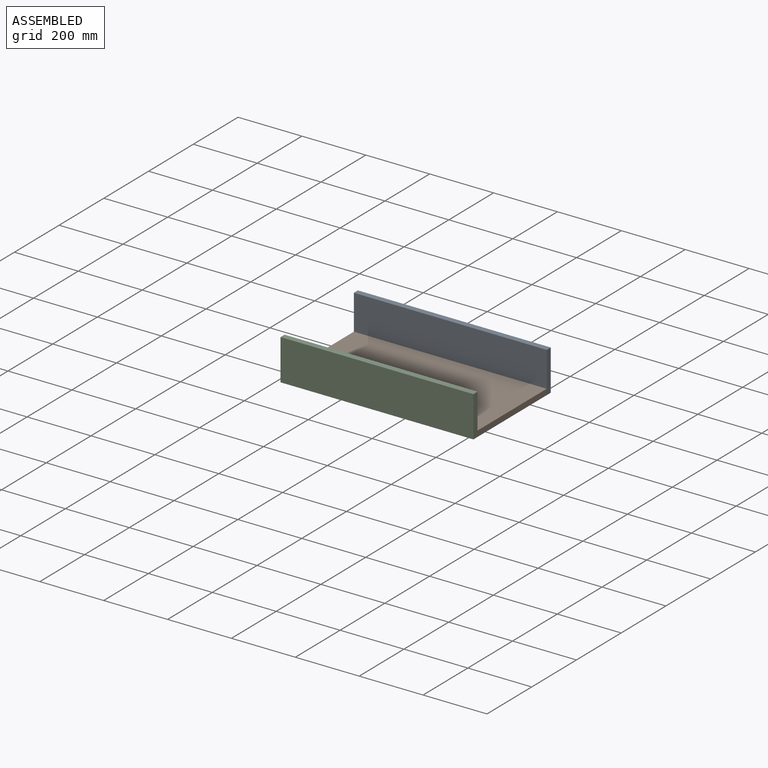
[diagram: assembled view]
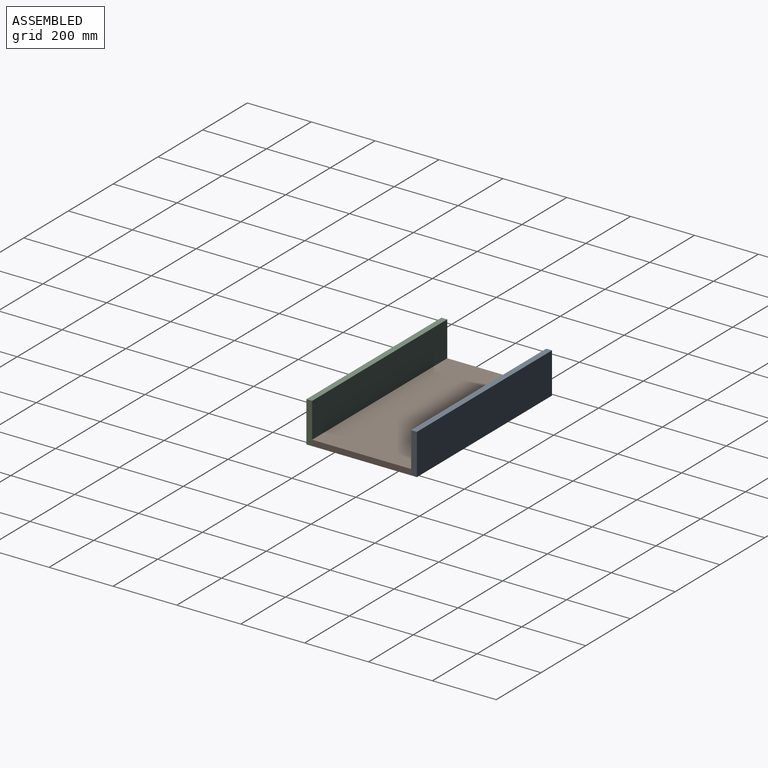
[diagram: assembled view, second angle]
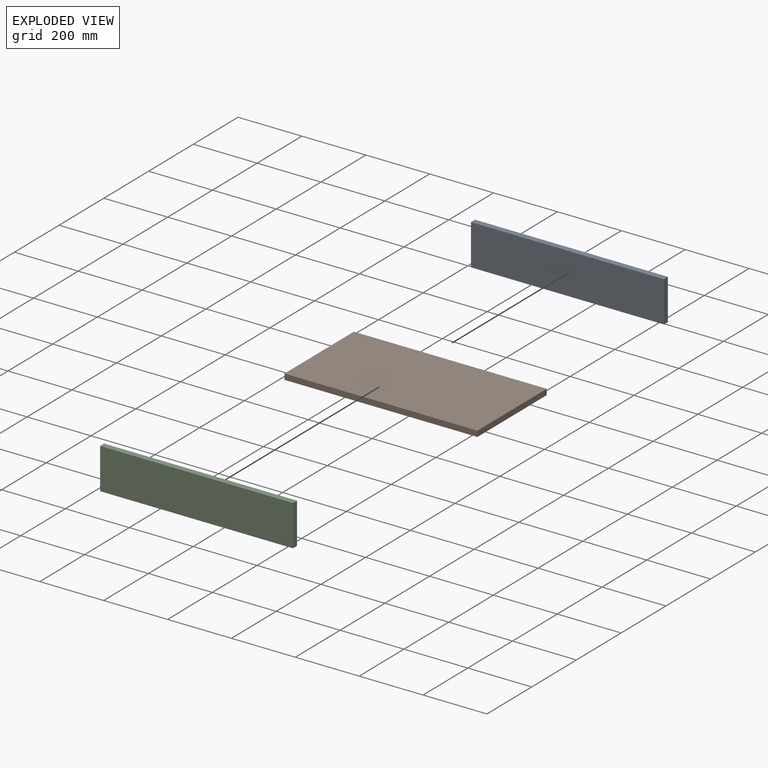
[diagram: exploded view]
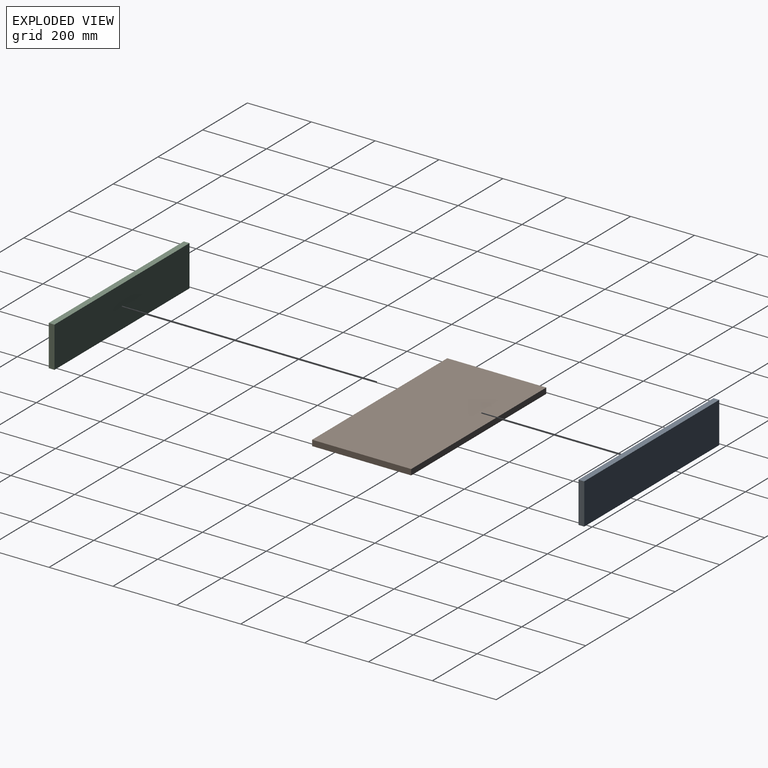
[diagram: exploded view, second angle]
ASSEMBLY  parts=3 mates=2
PART A: 6 faces, bbox 604x128x18 mm
  f0: plane 604x18mm, normal (0,-1,0), area 10872mm2, adj f1,f3,f4,f5
  f1: plane 128x18mm, normal (1,0,0), area 2304mm2, adj f0,f2,f4,f5
  f2: plane 604x18mm, normal (0,1,0), area 10872mm2, adj f1,f3,f4,f5
  f3: plane 128x18mm, normal (-1,0,0), area 2304mm2, adj f0,f2,f4,f5
  f4: plane 604x128mm, normal (0,0,1), area 77312mm2, adj f0,f1,f2,f3
  f5: plane 604x128mm, normal (0,0,-1), area 77312mm2, adj f0,f1,f2,f3
PART B: 6 faces, bbox 604x310x18 mm
  f0: plane 310x18mm, normal (-1,0,0), area 5580mm2, adj f1,f3,f4,f5
  f1: plane 604x18mm, normal (0,-1,0), area 10872mm2, adj f0,f2,f4,f5
  f2: plane 310x18mm, normal (1,0,0), area 5580mm2, adj f1,f3,f4,f5
  f3: plane 604x18mm, normal (0,1,0), area 10872mm2, adj f0,f2,f4,f5
  f4: plane 604x310mm, normal (0,0,1), area 187240mm2, adj f0,f1,f2,f3
  f5: plane 604x310mm, normal (0,0,-1), area 187240mm2, adj f0,f1,f2,f3
PART C: same geometry as A
PLACE A rot(axis=(-1,0,0),90deg) t=(-723.82,253.94,1407.23)mm
PLACE B t=(-723.82,-902.96,-82.1)mm
PLACE C rot(axis=(1,0,0),90deg) t=(-723.82,-56.06,-1443.44)mm
MATE fastened B.f1 <-> C.f5  axis (0,-1,0) through (-374.81,-56.06,-82.1)mm
MATE fastened A.f5 <-> B.f3  axis (0,-1,0) through (-374.81,253.94,-82.1)mm
